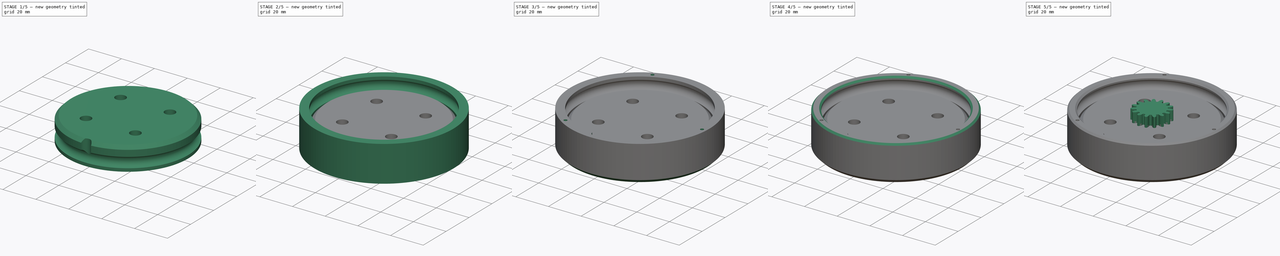
[diagram: build sequence overview — one tinted view per stage of 5, left to right]
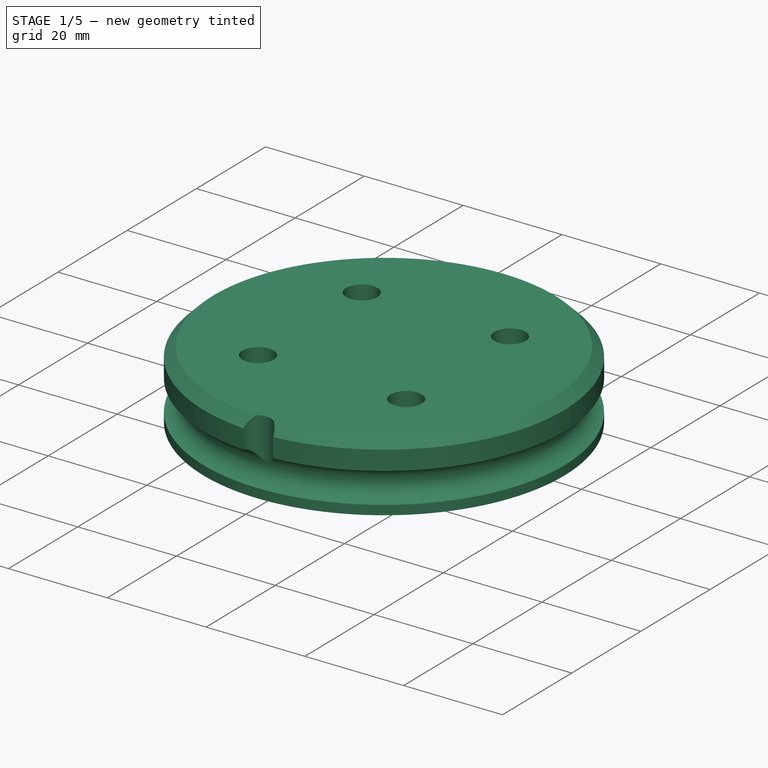
[diagram: stage 1 of 5 — iso view after this stage's code; geometry added in this stage tinted green]
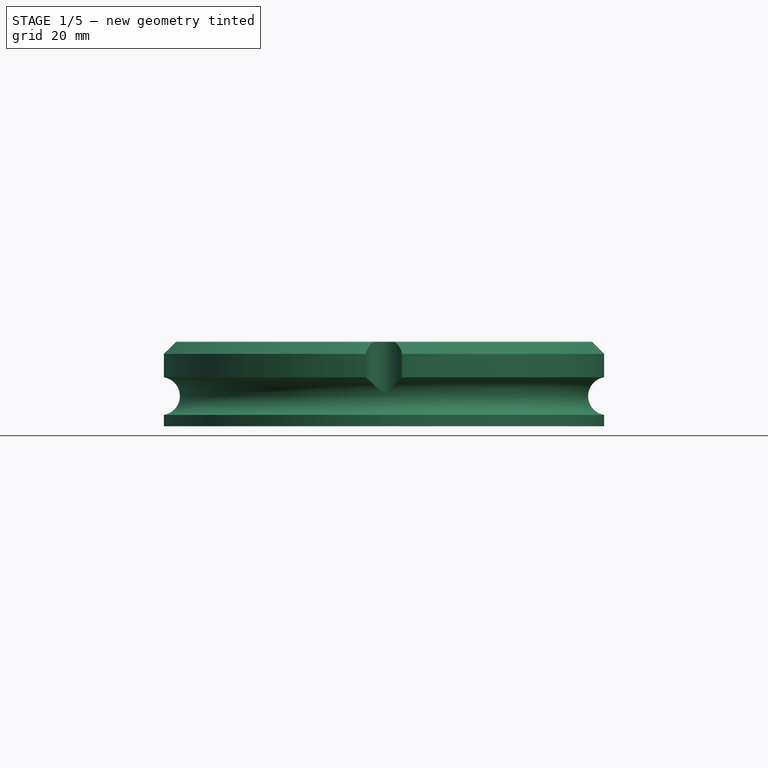
[diagram: stage 1 of 5 — front view after this stage's code; geometry added in this stage tinted green]
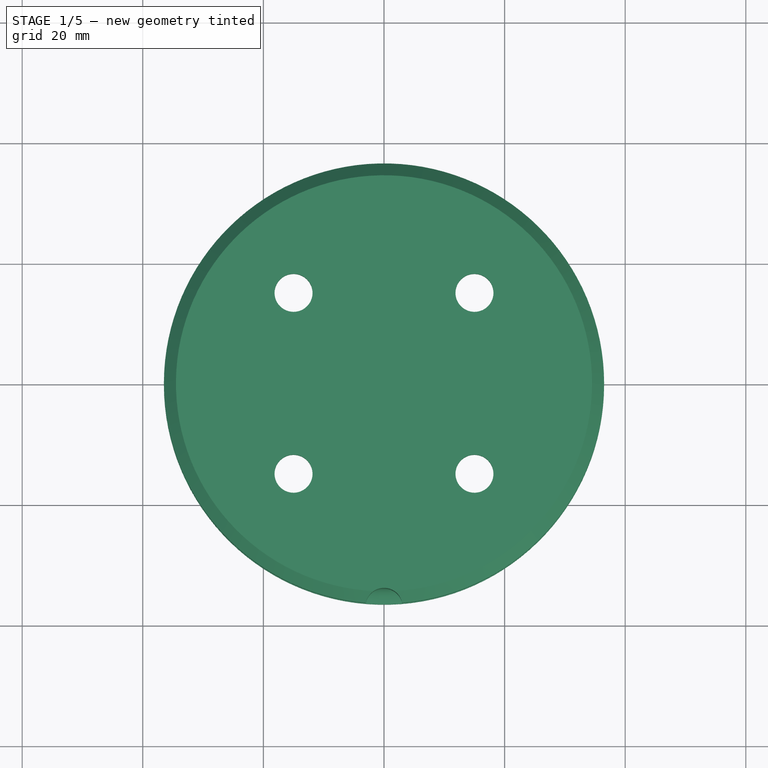
[diagram: stage 1 of 5 — top view after this stage's code; geometry added in this stage tinted green]
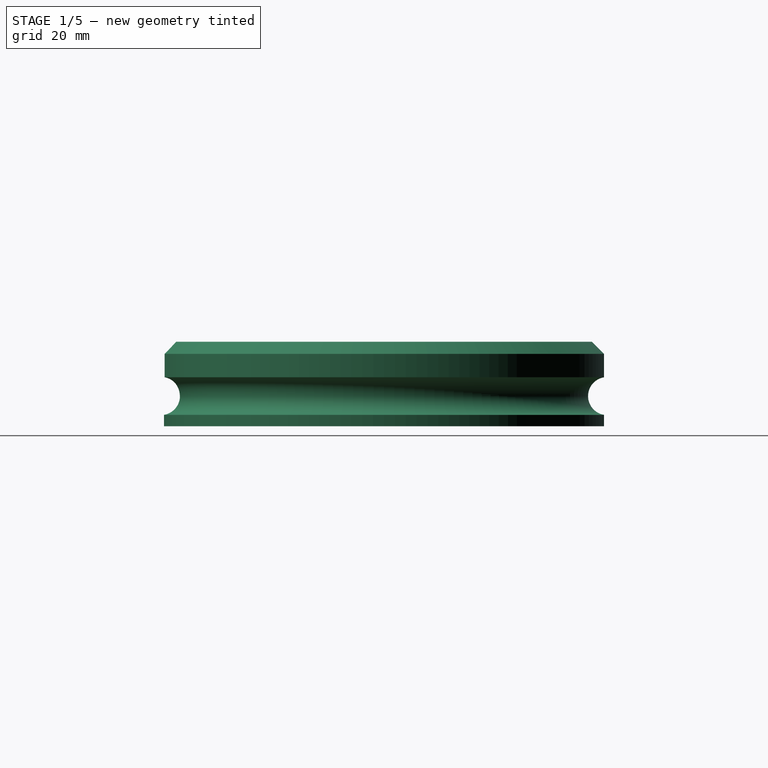
[diagram: stage 1 of 5 — right view after this stage's code; geometry added in this stage tinted green]
FCSTD DOCUMENT  (FreeCAD 2022.430R26244 +4758 (Git))
Label: gearbox-2
License: All rights reserved
LicenseURL: http://en.wikipedia.org/wiki/All_rights_reserved
objects: Sketcher::SketchObject×15, PartDesign::Pocket×9, PartDesign::Pad×8, Part::Part2DObjectPython×6, PartDesign::Body×6, App::Link×4, PartDesign::Chamfer×4, PartDesign::Fillet×3, PartDesign::SubtractivePipe×2, PartDesign::Hole×2, Spreadsheet::Sheet×1
note: 111 computed .brp shape members not serialized (recipe doc carries the construction recipe); baked Part::Feature solids carry a one-line shape summary decoded from their .brp

FEATURE [Part::Part2DObjectPython] InvoluteGear002  label="s2-sun-sketch"  # Draft 2D object (typed FeaturePython)
  ExternalGear = true
  HighPrecision = false
  Modules = 1.27273
  NumberOfTeeth = 18
  PressureAngle = 20
  TreeRank = 42
  expr: Modules = <<sp>>.H9
  expr: NumberOfTeeth = <<sp>>.E9
FEATURE [Part::Part2DObjectPython] InvoluteGear003  label="s2-ring-sketch"  # Draft 2D object (typed FeaturePython)
  ExternalGear = false
  HighPrecision = false
  Modules = 1.27273
  NumberOfTeeth = 48
  Placement = pos=(0,0,11) rot=(0,0,1;0rad)
  PressureAngle = 20
  TreeRank = 58
  expr: Modules = <<sp>>.H9
  expr: NumberOfTeeth = <<sp>>.D9
FEATURE [Part::Part2DObjectPython] InvoluteGear004  label="s2-planet-sketch"  # Draft 2D object (typed FeaturePython)
  ExternalGear = true
  HighPrecision = false
  Modules = 1.27273
  NumberOfTeeth = 15
  Placement = pos=(0,0,10) rot=(0,0,1;0rad)
  PressureAngle = 20
  TreeRank = 121
  expr: Modules = <<sp>>.H9
  expr: NumberOfTeeth = <<sp>>.F9
FEATURE [Sketcher::SketchObject] Sketch001
  FullyConstrained = true
  MapMode = 5
  Support = -> [XY_Plane002]
  TreeRank = 87
  sketch-geometry (1):
    g0: Circle CenterX=0 CenterY=0 CenterZ=0 NormalX=0 NormalY=0 NormalZ=1 AngleXU=0 Radius=36.5
  constraints (2):
    c: Coincident(g0,g-1)
    c: Diameter(g0) = 73
FEATURE [PartDesign::Pad] Pad002
  AddSubType = 0
  AlongSketchNormal = false
  CheckUpToFaceLimits = true
  ClaimChildren = false
  Direction = (0,0,1)
  Fit = 0
  FitJoin = 0
  InnerFit = 0
  InnerFitJoin = 0
  InnerTaperAngle = 0
  InnerTaperAngleRev = 0
  Length = 14
  Length2 = 0
  Linearize = true
  NewSolid = false
  Profile = -> Sketch001
  Suppress = false
  TreeRank = 88
  Type = 0
  _ProfileBasedVersion = 1
FEATURE [PartDesign::Pocket] Pocket001
  AddSubType = 1
  BaseFeature = -> Pad002
  CheckUpToFaceLimits = true
  ClaimChildren = false
  Fit = 0
  FitJoin = 0
  InnerFit = 0
  InnerFitJoin = 0
  InnerTaperAngle = 0
  InnerTaperAngleRev = 0
  Length = 12
  Length2 = 100
  Linearize = true
  NewSolid = false
  Profile = -> InvoluteGear003
  Suppress = false
  TreeRank = 124
  Type = 0
  _ProfileBasedVersion = 1
  _Version = 1
FEATURE [Sketcher::SketchObject] Sketch003
  FullyConstrained = true
  MapMode = 5
  Placement = pos=(0,0,0) rot=(0.57735,0.57735,0.57735;2.0944rad)
  Support = -> [YZ_Plane001]
  TreeRank = 136
  sketch-geometry (1):
    g0: Circle CenterX=-37 CenterY=15 CenterZ=0 NormalX=0 NormalY=0 NormalZ=1 AngleXU=0 Radius=3.15
  constraints (3):
    c: Diameter(g0) = 6.3
    c: DistanceX(g0,g-1) = 37
    c: DistanceY(g-1,g0) = 15
FEATURE [Sketcher::SketchObject] Sketch004
  FullyConstrained = true
  MapMode = 5
  Placement = pos=(0,0,0) rot=(0.57735,0.57735,0.57735;2.0944rad)
  Support = -> [YZ_Plane002]
  TreeRank = 134
  sketch-geometry (1):
    g0: Circle CenterX=-37 CenterY=5 CenterZ=0 NormalX=0 NormalY=0 NormalZ=1 AngleXU=0 Radius=3.15
  constraints (3):
    c: Diameter(g0) = 6.3
    c: DistanceX(g0,g-1) = 37
    c: DistanceY(g-1,g0) = 5
FEATURE [PartDesign::SubtractivePipe] Pipe001
  AddSubType = 1
  AuxilleryCurvelinear = true
  AuxillerySpineTangent = false
  BaseFeature = -> Pocket001
  Binormal = (0,0,0)
  ClaimChildren = false
  Fit = 0
  FitJoin = 0
  InnerFit = 0
  InnerFitJoin = 0
  Linearize = true
  Mode = 0
  NewSolid = false
  Profile = -> Sketch004
  Spine = -> Pocket001 [Edge2]
  SpineTangent = false
  Suppress = false
  Transformation = 0
  Transition = 1
  TreeRank = 135
  _ProfileBasedVersion = 2
FEATURE [Sketcher::SketchObject] Sketch005
  FullyConstrained = true
  MapMode = 5
  Placement = pos=(0,0,14) rot=(0,0,1;0rad)
  Support = -> [Pipe001]
  TreeRank = 138
  sketch-geometry (1):
    g0: Circle CenterX=0 CenterY=-37 CenterZ=0 NormalX=0 NormalY=0 NormalZ=1 AngleXU=0 Radius=3.075
  constraints (3):
    c: PointOnObject(g0,g-2)
    c: Diameter(g0) = 6.15
    c: DistanceY(g0,g-1) = 37
FEATURE [PartDesign::Pocket] Pocket002
  AddSubType = 1
  BaseFeature = -> Pipe001
  CheckUpToFaceLimits = true
  ClaimChildren = false
  Fit = 0
  FitJoin = 0
  InnerFit = 0
  InnerFitJoin = 0
  InnerTaperAngle = 0
  InnerTaperAngleRev = 0
  Length = 9
  Length2 = 100
  Linearize = true
  NewSolid = false
  Profile = -> Sketch005
  Suppress = false
  TreeRank = 139
  Type = 0
  _ProfileBasedVersion = 1
  _Version = 1
FEATURE [PartDesign::Body] Body003  label="S2-Sun"
  AutoGroupSolids = false
  ClaimAllChildren = false
  ExportMode = 0
  Group = -> [InvoluteGear002,Pad005,Sketch010,Pocket006]
  Origin = -> Origin003
  Placement = pos=(0,0,10) rot=(0,0,1;0rad)
  Tip = -> Pocket006
  TreeRank = 104
  _ExportChildren = -> [Pad005,Pocket006]
  _GroupVersion = 1
FEATURE [Sketcher::SketchObject] Sketch011
  FullyConstrained = true
  MapMode = 5
  Placement = pos=(0,0,-2) rot=(1,0,0;3.14159rad)
  Support = -> [Pocket004]
  TreeRank = 166
  sketch-geometry (1):
    g0: Circle CenterX=0 CenterY=37.5 CenterZ=0 NormalX=0 NormalY=0 NormalZ=1 AngleXU=0 Radius=1
  constraints (3):
    c: PointOnObject(g0,g-2)
    c: Diameter(g0) = 2
    c: DistanceY(g-1,g0) = 37.5  'radius'
FEATURE [Sketcher::SketchObject] Sketch013
  FullyConstrained = true
  MapMode = 5
  Placement = pos=(0,0,14) rot=(0,0,1;0rad)
  Support = -> [Pocket002]
  TreeRank = 170
  sketch-geometry (9):
    g0: LineSegment [constr] StartX=-15 StartY=15 StartZ=0 EndX=-15 EndY=-15 EndZ=0
    g1: LineSegment [constr] StartX=-15 StartY=-15 StartZ=0 EndX=15 EndY=-15 EndZ=0
    g2: LineSegment [constr] StartX=15 StartY=-15 StartZ=0 EndX=15 EndY=15 EndZ=0
    g3: LineSegment [constr] StartX=15 StartY=15 StartZ=0 EndX=-15 EndY=15 EndZ=0
    g4: GeomPoint [constr] X=0 Y=-1e-16 Z=0
    g5: Circle CenterX=-15 CenterY=15 CenterZ=0 NormalX=0 NormalY=0 NormalZ=1 AngleXU=0 Radius=2
    g6: Circle CenterX=15 CenterY=15 CenterZ=0 NormalX=0 NormalY=0 NormalZ=1 AngleXU=0 Radius=2
    g7: Circle CenterX=15 CenterY=-15 CenterZ=0 NormalX=0 NormalY=0 NormalZ=1 AngleXU=0 Radius=2
    g8: Circle CenterX=-15 CenterY=-15 CenterZ=0 NormalX=0 NormalY=0 NormalZ=1 AngleXU=0 Radius=2
  constraints (20):
    c: Coincident(g0,g1)
    c: Coincident(g1,g2)
    c: Coincident(g2,g3)
    c: Coincident(g3,g0)
    c: Horizontal(g1)
    c: Horizontal(g3)
    c: Vertical(g0)
    c: Vertical(g2)
    c: Symmetric(g1,g0,g4)
    c: Coincident(g4,g-1)
    c: Equal(g3,g2)
    c: Distance(g3) = 30
    c: Coincident(g5,g0)
    c: Coincident(g6,g2)
    c: Coincident(g7,g1)
    c: Coincident(g8,g0)
    c: Equal(g5,g6)
    c: Equal(g6,g7)
    c: Equal(g7,g8)
    c: Diameter(g6) = 4
FEATURE [PartDesign::Hole] Hole001
  AddSubType = 1
  BaseFeature = -> Pocket002
  ClaimChildren = false
  CustomThreadClearance = 0
  Depth = 25
  DepthType = 0
  Diameter = 6.3
  DrillForDepth = false
  DrillPoint = 1
  DrillPointAngle = 118
  Fit = 0
  FitJoin = 0
  HoleCutCountersinkAngle = 90
  HoleCutCustomValues = false
  HoleCutDepth = 0
  HoleCutDiameter = 8.95
  HoleCutType = 0
  InnerFit = 0
  InnerFitJoin = 0
  Linearize = true
  ModelThread = false
  NewSolid = false
  Profile = -> Sketch013
  Suppress = false
  Tapered = false
  TaperedAngle = 90
  ThreadClass = 0
  ThreadDepth = 25
  ThreadDepthType = 0
  ThreadDirection = 0
  ThreadFit = 2
  ThreadSize = 0
  ThreadType = 0
  Threaded = false
  TreeRank = 171
  UseCustomThreadClearance = false
  _ProfileBasedVersion = 1
FEATURE [PartDesign::Chamfer] Chamfer
  AddSubType = 0
  Angle = 45
  Base = -> Hole001 [Edge879,Edge883]
  BaseFeature = -> Hole001
  ChamferType = 0
  FlipDirection = false
  NewSolid = false
  Size = 2
  Size2 = 1
  SupportTransform = false
  Suppress = false
  TreeRank = 174
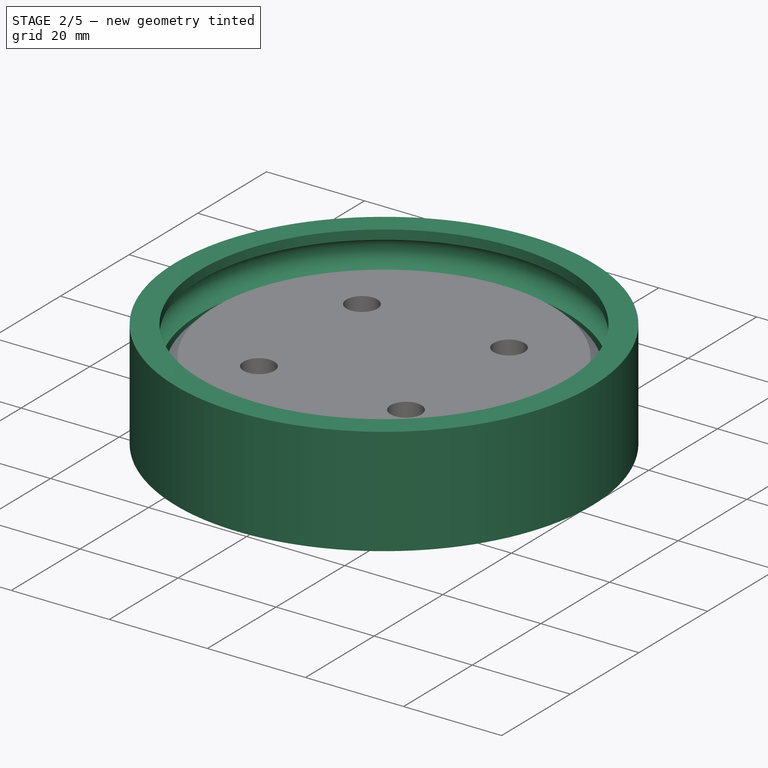
[diagram: stage 2 of 5 — iso view after this stage's code; geometry added in this stage tinted green]
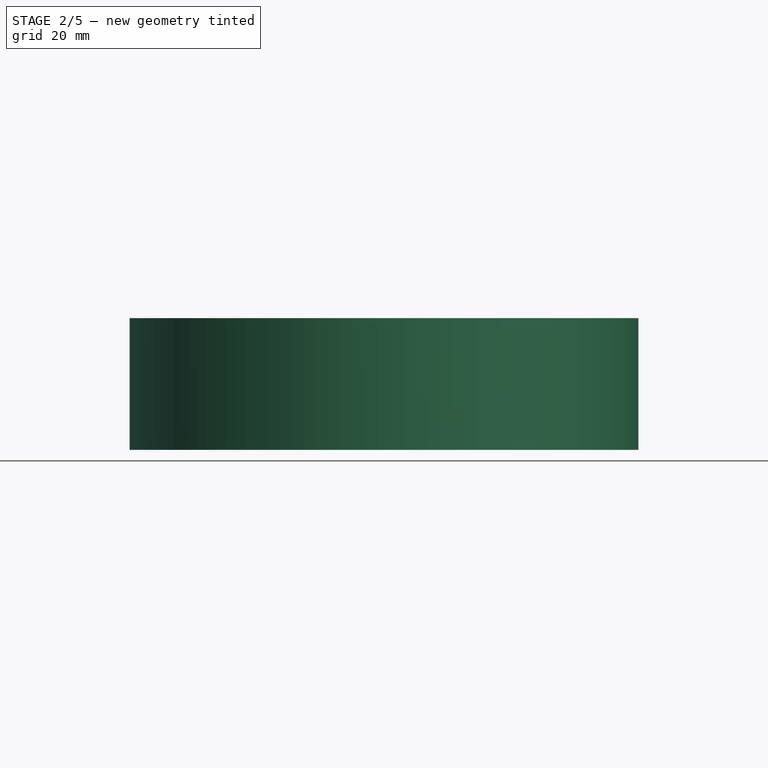
[diagram: stage 2 of 5 — front view after this stage's code; geometry added in this stage tinted green]
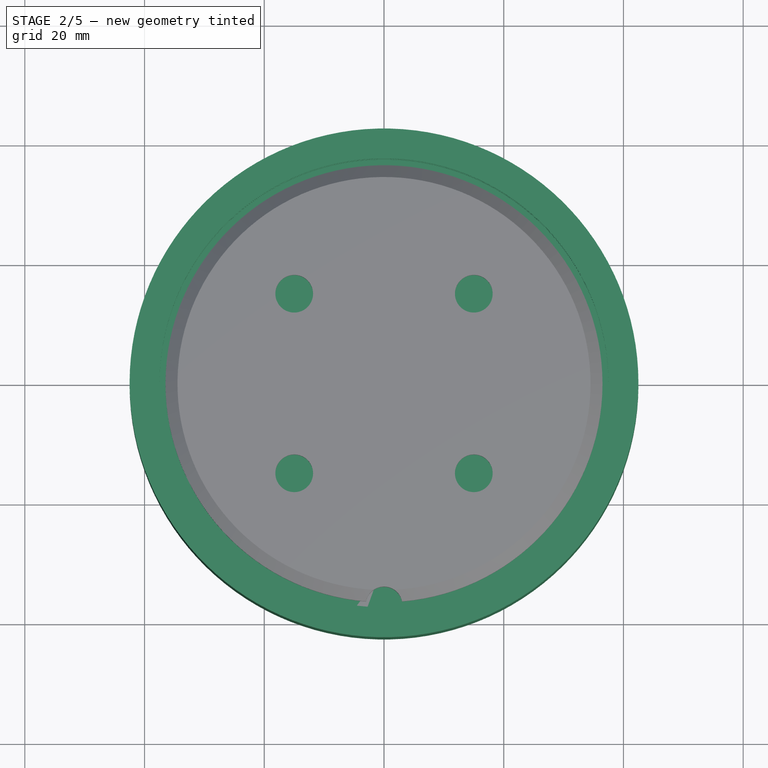
[diagram: stage 2 of 5 — top view after this stage's code; geometry added in this stage tinted green]
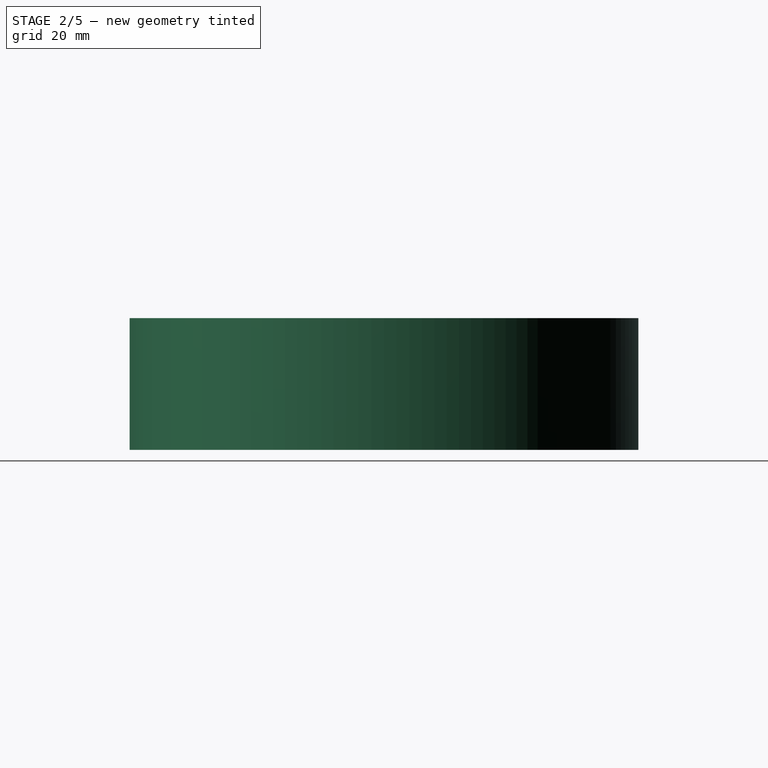
[diagram: stage 2 of 5 — right view after this stage's code; geometry added in this stage tinted green]
FEATURE [Spreadsheet::Sheet] Spreadsheet  label="sp"
  PythonMode = false
  ShowCells = 0
  TreeRank = 0
  cells = D6=Teeth; I6=Gear diameter; B7=Ratio; D7=Ring; E7=Sun; F7=Planet; H7=Module; I7=Ring; J7=Sun; K7=Planet; M7=Dist to planet; B8==1 / ((D9 - D8 / F8 * F9) / D9 * E8 / (D8 + E8)); D8==E8 + F8 * 2; E8=15; F8=15; H8=1.4; I8==D8 * H8; J8==E8 * H8; K8==F8 * H8; M8==(J8 + K8) / 2; D9==E9 + F9 * 2; E9=18; F9=15; H9==(E8 + F8) / (E9 + F9) * H8; I9==D9 * H9; J9==E9 * H9; K9==F9 * H9; M9==(J9 + K9) / 2; A11=These must be 0; B11==(D8 + D9) % 3; B12==(D9 + E9) % 3; E13=P1; F13=P2; G13=P3; D14=x; E14==M8 * cos(0); F14==M8 * cos(120); G14==M8 * cos(240); D15=y; E15==M8 * sin(0); F15==M8 * sin(120); G15==M8 * sin(240)
FEATURE [Part::Part2DObjectPython] InvoluteGear  label="s1-sun-sketch"  # Draft 2D object (typed FeaturePython)
  ExternalGear = true
  HighPrecision = false
  Modules = 1.4
  NumberOfTeeth = 15
  PressureAngle = 20
  TreeRank = 126
  expr: Modules = <<sp>>.H8
  expr: NumberOfTeeth = <<sp>>.E8
FEATURE [Part::Part2DObjectPython] InvoluteGear001  label="s1-ring-sketch"  # Draft 2D object (typed FeaturePython)
  ExternalGear = false
  HighPrecision = false
  Modules = 1.4
  NumberOfTeeth = 45
  PressureAngle = 20
  TreeRank = 2
  expr: Modules = <<sp>>.H8
  expr: NumberOfTeeth = <<sp>>.D8
FEATURE [Sketcher::SketchObject] Sketch
  FullyConstrained = true
  MapMode = 5
  Support = -> [XY_Plane001]
  TreeRank = 33
  sketch-geometry (1):
    g0: Circle CenterX=0 CenterY=0 CenterZ=0 NormalX=0 NormalY=0 NormalZ=1 AngleXU=0 Radius=42.5
  constraints (2):
    c: Coincident(g0,g-1)
    c: Diameter(g0) = 85
FEATURE [PartDesign::Pad] Pad001
  AddSubType = 0
  AlongSketchNormal = false
  CheckUpToFaceLimits = true
  ClaimChildren = false
  Direction = (0,0,1)
  Fit = 0
  FitJoin = 0
  InnerFit = 0
  InnerFitJoin = 0
  InnerTaperAngle = 0
  InnerTaperAngleRev = 0
  Length = 10
  Length2 = 2
  Linearize = true
  NewSolid = false
  Profile = -> Sketch
  Suppress = false
  TreeRank = 34
  Type = 4
  _ProfileBasedVersion = 1
FEATURE [PartDesign::Pocket] Pocket
  AddSubType = 1
  BaseFeature = -> Pad001
  CheckUpToFaceLimits = true
  ClaimChildren = false
  Fit = 0
  FitJoin = 0
  InnerFit = 0
  InnerFitJoin = 0
  InnerTaperAngle = 0
  InnerTaperAngleRev = 0
  Length = 10
  Length2 = 100
  Linearize = true
  NewSolid = false
  Profile = -> InvoluteGear001
  Reversed = true
  Suppress = false
  TreeRank = 125
  Type = 0
  _ProfileBasedVersion = 1
  _Version = 1
FEATURE [App::Link] Link003  label="Link003(S2-Planet)"
  AutoLinkLabel = true
  AutoPlacement = true
  LinkPlacement = pos=(-10.5,18.1865,0) rot=(0,0,1;0rad)
  LinkedObject = -> Body004
  Placement = pos=(-10.5,18.1865,0) rot=(0,0,1;0rad)
  SyncGroupVisibility = false
  TreeRank = 128
  _LinkVersion = 1
  expr: Placement.Base.x = <<sp>>.F14
  expr: Placement.Base.y = <<sp>>.F15
FEATURE [App::Link] Link004  label="Link004(S2-Planet)"
  AutoLinkLabel = true
  AutoPlacement = true
  LinkPlacement = pos=(-10.5,-18.1865,0) rot=(0,0,1;0rad)
  LinkedObject = -> Body004
  Placement = pos=(-10.5,-18.1865,0) rot=(0,0,1;0rad)
  SyncGroupVisibility = false
  TreeRank = 129
  _LinkVersion = 1
  expr: Placement.Base.x = <<sp>>.G14
  expr: Placement.Base.y = <<sp>>.G15
FEATURE [Sketcher::SketchObject] Sketch002
  FullyConstrained = true
  MapMode = 5
  Placement = pos=(0,0,10) rot=(0,0,1;0rad)
  Support = -> [Pocket]
  TreeRank = 130
  sketch-geometry (2):
    g0: Circle CenterX=0 CenterY=0 CenterZ=0 NormalX=0 NormalY=0 NormalZ=1 AngleXU=0 Radius=37.5
    g1: Circle CenterX=0 CenterY=0 CenterZ=0 NormalX=0 NormalY=0 NormalZ=1 AngleXU=0 Radius=42.5
  constraints (4):
    c: Coincident(g0,g-1)
    c: Diameter(g0) = 75
    c: Coincident(g1,g0)
    c: Diameter(g1) = 85
FEATURE [PartDesign::Pad] Pad006
  AddSubType = 0
  AlongSketchNormal = false
  BaseFeature = -> Pocket
  CheckUpToFaceLimits = true
  ClaimChildren = false
  Direction = (0,0,1)
  Fit = 0
  FitJoin = 0
  InnerFit = 0
  InnerFitJoin = 0
  InnerTaperAngle = 0
  InnerTaperAngleRev = 0
  Length = 10
  Length2 = 100
  Linearize = true
  NewSolid = false
  Profile = -> Sketch002
  Suppress = false
  TreeRank = 131
  Type = 0
  _ProfileBasedVersion = 1
FEATURE [PartDesign::SubtractivePipe] Pipe
  AddSubType = 1
  AuxilleryCurvelinear = true
  AuxillerySpineTangent = false
  BaseFeature = -> Pad006
  Binormal = (0,0,0)
  ClaimChildren = false
  Fit = 0
  FitJoin = 0
  InnerFit = 0
  InnerFitJoin = 0
  Linearize = true
  Mode = 0
  NewSolid = false
  Profile = -> Sketch003
  Spine = -> Pad006 [Edge8]
  SpineTangent = false
  Suppress = false
  Transformation = 0
  Transition = 1
  TreeRank = 137
  _ProfileBasedVersion = 2
FEATURE [PartDesign::Body] Body001  label="S1-Ring"
  AutoGroupSolids = false
  ClaimAllChildren = false
  ExportMode = 0
  Group = -> [Sketch,Pad001,InvoluteGear001,Pocket,Sketch002,Pad006,Sketch003,Pipe,Sketch006,Pocket003,Sketch007,Pocket004,Sketch011,Pocket007,Sketch012,Hole,Sketch014,Pocket008,Chamfer001,Chamfer002,Chamfer003,Fillet,Fillet001]
  Origin = -> Origin001
  Placement = pos=(0,0,0) rot=(0,0,1;0.069813rad)
  Tip = -> Fillet001
  TreeRank = 60
  _ExportChildren = -> [Pad001,Pocket,Pad006,Pipe,Pocket003,Pocket004,Pocket007,Hole,Pocket008,Chamfer001,Chamfer002,Chamfer003,Fillet,Fillet001]
  _GroupVersion = 1
FEATURE [PartDesign::Fillet] Fillet002
  AddSubType = 0
  Base = -> Chamfer [Edge11]
  BaseFeature = -> Chamfer
  NewSolid = false
  Radius = 1
  SupportTransform = false
  Suppress = false
  TreeRank = 181
FEATURE [PartDesign::Body] Body002  label="S2-Ring"
  AutoGroupSolids = false
  ClaimAllChildren = false
  ExportMode = 0
  Group = -> [Sketch001,Pad002,InvoluteGear003,Pocket001,Sketch004,Pipe001,Sketch005,Pocket002,Sketch013,Hole001,Chamfer,Fillet002]
  Origin = -> Origin002
  Placement = pos=(0,0,10) rot=(0,0,1;0.069813rad)
  Tip = -> Fillet002
  TreeRank = 86
  _ExportChildren = -> [Pad002,Pocket001,Pipe001,Pocket002,Hole001,Chamfer,Fillet002]
  _GroupVersion = 1
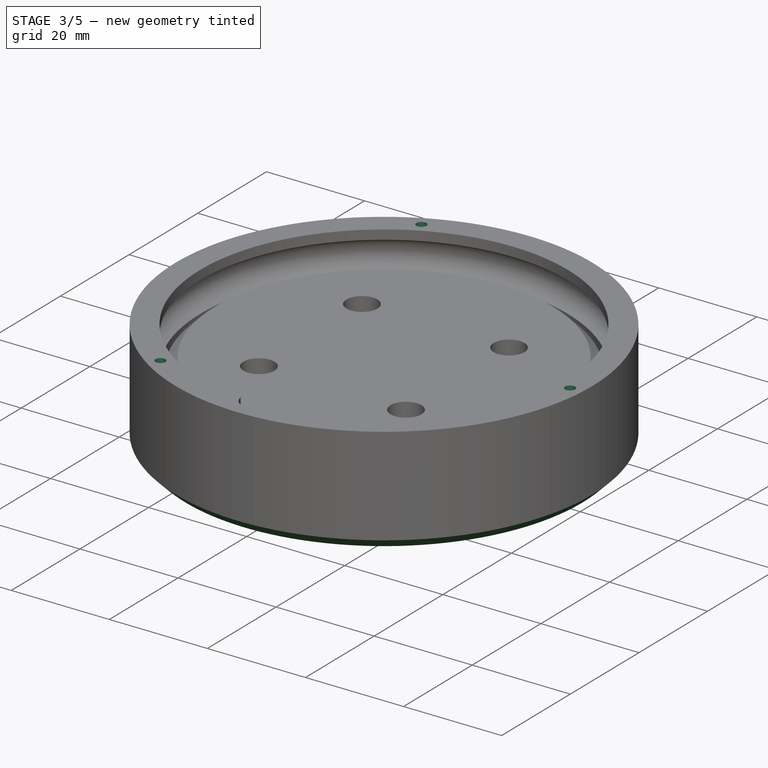
[diagram: stage 3 of 5 — iso view after this stage's code; geometry added in this stage tinted green]
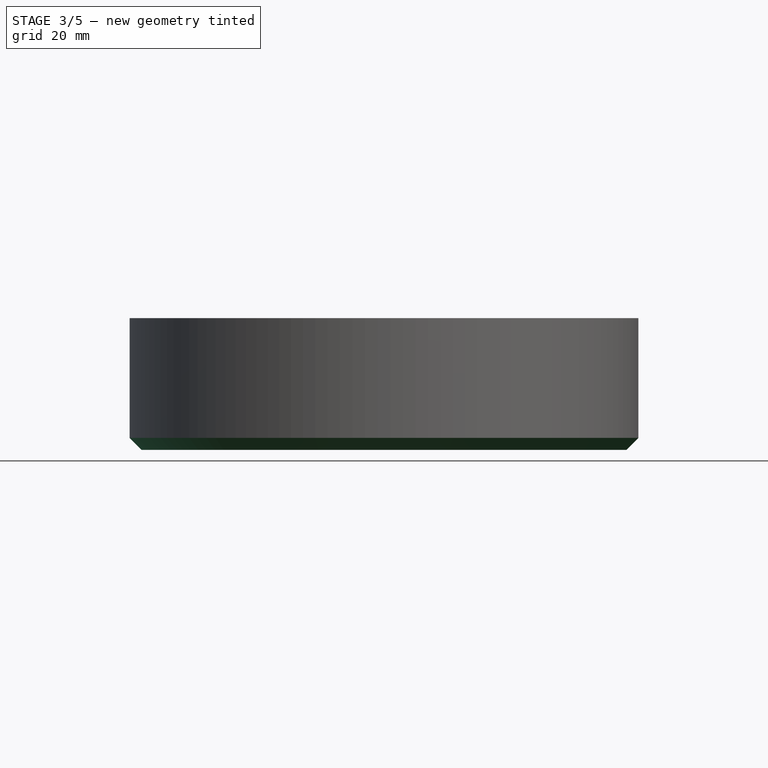
[diagram: stage 3 of 5 — front view after this stage's code; geometry added in this stage tinted green]
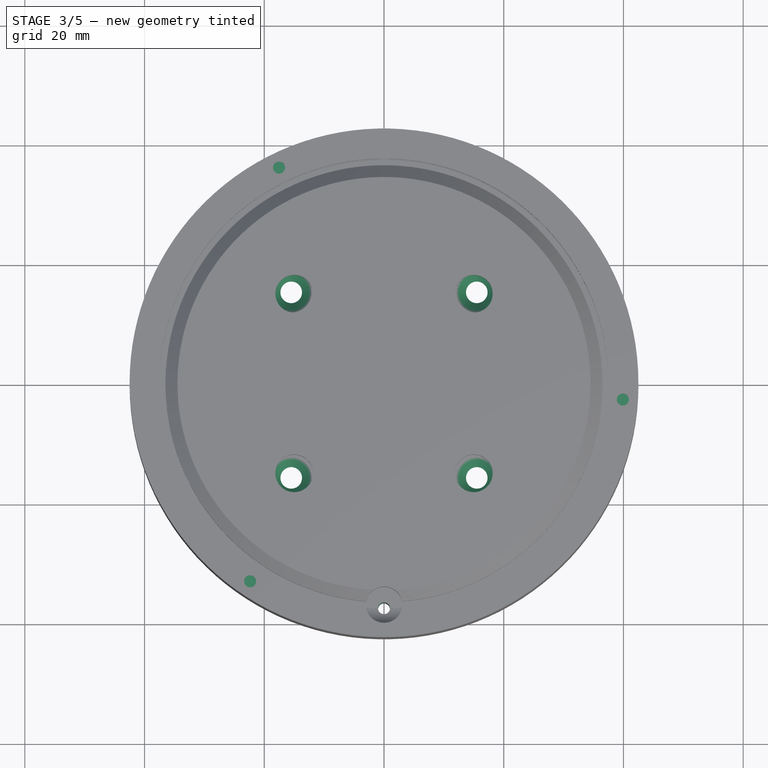
[diagram: stage 3 of 5 — top view after this stage's code; geometry added in this stage tinted green]
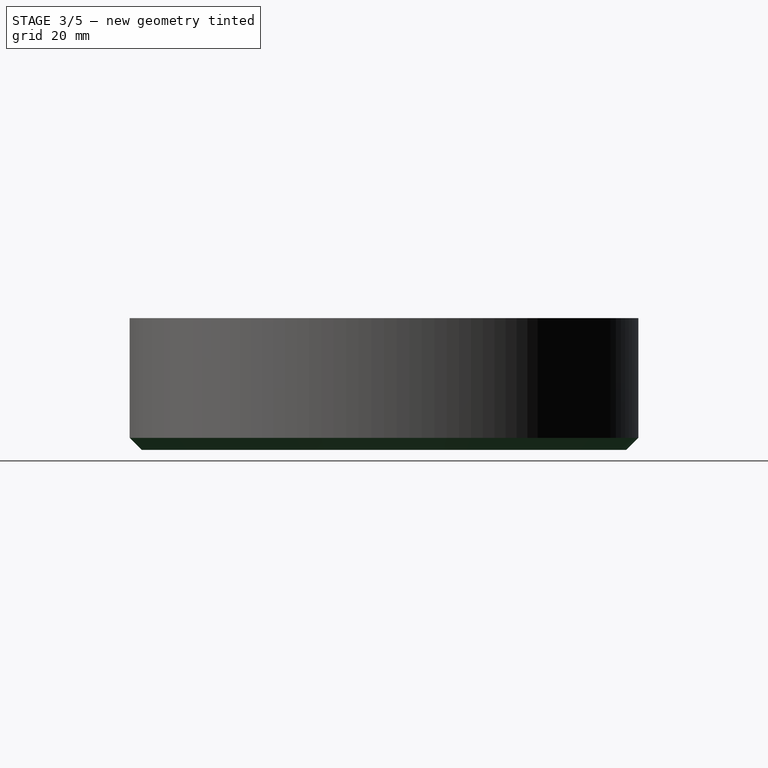
[diagram: stage 3 of 5 — right view after this stage's code; geometry added in this stage tinted green]
FEATURE [Sketcher::SketchObject] Sketch006
  FullyConstrained = true
  MapMode = 5
  Placement = pos=(0,0,20) rot=(0,0,1;0rad)
  Support = -> [Pipe]
  TreeRank = 140
  sketch-geometry (1):
    g0: Circle CenterX=0 CenterY=-37 CenterZ=0 NormalX=0 NormalY=0 NormalZ=1 AngleXU=0 Radius=3.075
  constraints (3):
    c: PointOnObject(g0,g-2)
    c: Diameter(g0) = 6.15
    c: DistanceY(g0,g-1) = 37
FEATURE [PartDesign::Pocket] Pocket003
  AddSubType = 1
  BaseFeature = -> Pipe
  CheckUpToFaceLimits = true
  ClaimChildren = false
  Fit = 0
  FitJoin = 0
  InnerFit = 0
  InnerFitJoin = 0
  InnerTaperAngle = 0
  InnerTaperAngleRev = 0
  Length = 5
  Length2 = 100
  Linearize = true
  NewSolid = false
  Profile = -> Sketch006
  Suppress = false
  TreeRank = 141
  Type = 0
  _ProfileBasedVersion = 1
  _Version = 1
FEATURE [Sketcher::SketchObject] Sketch007
  FullyConstrained = true
  MapMode = 5
  Support = -> [XY_Plane001]
  TreeRank = 142
  sketch-geometry (1):
    g0: Circle CenterX=0 CenterY=0 CenterZ=0 NormalX=0 NormalY=0 NormalZ=1 AngleXU=0 Radius=11
  constraints (2):
    c: Coincident(g0,g-1)
    c: Diameter(g0) = 22
FEATURE [PartDesign::Pocket] Pocket004
  AddSubType = 1
  BaseFeature = -> Pocket003
  CheckUpToFaceLimits = true
  ClaimChildren = false
  Fit = 0
  FitJoin = 0
  InnerFit = 0
  InnerFitJoin = 0
  InnerTaperAngle = 0
  InnerTaperAngleRev = 0
  Length = 10
  Length2 = 100
  Linearize = true
  NewSolid = false
  Profile = -> Sketch007
  Suppress = false
  TreeRank = 143
  Type = 0
  _ProfileBasedVersion = 1
  _Version = 1
FEATURE [PartDesign::Pocket] Pocket007
  AddSubType = 1
  BaseFeature = -> Pocket004
  CheckUpToFaceLimits = true
  ClaimChildren = false
  Fit = 0
  FitJoin = 0
  InnerFit = 0
  InnerFitJoin = 0
  InnerTaperAngle = 0
  InnerTaperAngleRev = 0
  Length = 20
  Length2 = 100
  Linearize = true
  NewSolid = false
  Profile = -> Sketch011
  Suppress = false
  TreeRank = 178
  Type = 0
  _ProfileBasedVersion = 1
  _Version = 1
FEATURE [Sketcher::SketchObject] Sketch012
  FullyConstrained = true
  MapMode = 5
  Support = -> [Pocket007]
  TreeRank = 168
  sketch-geometry (9):
    g0: LineSegment [constr] StartX=-15.5 StartY=15.5 StartZ=0 EndX=-15.5 EndY=-15.5 EndZ=0
    g1: LineSegment [constr] StartX=-15.5 StartY=-15.5 StartZ=0 EndX=15.5 EndY=-15.5 EndZ=0
    g2: LineSegment [constr] StartX=15.5 StartY=-15.5 StartZ=0 EndX=15.5 EndY=15.5 EndZ=0
    g3: LineSegment [constr] StartX=15.5 StartY=15.5 StartZ=0 EndX=-15.5 EndY=15.5 EndZ=0
    g4: GeomPoint [constr] X=0 Y=0 Z=0
    g5: Circle CenterX=15.5 CenterY=15.5 CenterZ=0 NormalX=0 NormalY=0 NormalZ=1 AngleXU=0 Radius=2
    g6: Circle CenterX=-15.5 CenterY=15.5 CenterZ=0 NormalX=0 NormalY=0 NormalZ=1 AngleXU=0 Radius=2
    g7: Circle CenterX=-15.5 CenterY=-15.5 CenterZ=0 NormalX=0 NormalY=0 NormalZ=1 AngleXU=0 Radius=2
    g8: Circle CenterX=15.5 CenterY=-15.5 CenterZ=0 NormalX=0 NormalY=0 NormalZ=1 AngleXU=0 Radius=2
  constraints (20):
    c: Coincident(g0,g1)
    c: Coincident(g1,g2)
    c: Coincident(g2,g3)
    c: Coincident(g3,g0)
    c: Horizontal(g1)
    c: Horizontal(g3)
    c: Vertical(g0)
    c: Vertical(g2)
    c: Symmetric(g1,g0,g4)
    c: Equal(g1,g2)
    c: Coincident(g4,g-1)
    c: Distance(g3) = 31
    c: Coincident(g5,g2)
    c: Coincident(g6,g0)
    c: Coincident(g7,g0)
    c: Coincident(g8,g1)
    c: Equal(g8,g7)
    c: Equal(g7,g6)
    c: Equal(g6,g5)
    c: Diameter(g5) = 4
FEATURE [PartDesign::Hole] Hole
  AddSubType = 1
  BaseFeature = -> Pocket007
  ClaimChildren = false
  CustomThreadClearance = 0
  Depth = 25
  DepthType = 0
  Diameter = 3.6
  DrillForDepth = false
  DrillPoint = 0
  DrillPointAngle = 112
  Fit = 0
  FitJoin = 0
  HoleCutCountersinkAngle = 85
  HoleCutCustomValues = false
  HoleCutDepth = 0
  HoleCutDiameter = 6.8
  HoleCutType = 2
  InnerFit = 0
  InnerFitJoin = 0
  Linearize = true
  ModelThread = false
  NewSolid = false
  Profile = -> Sketch012
  Suppress = false
  Tapered = true
  TaperedAngle = 90
  ThreadClass = 0
  ThreadDepth = 25
  ThreadDepthType = 0
  ThreadDirection = 0
  ThreadFit = 2
  ThreadSize = 9
  ThreadType = 1
  Threaded = false
  TreeRank = 169
  UseCustomThreadClearance = false
  _ProfileBasedVersion = 1
FEATURE [Sketcher::SketchObject] Sketch014
  FullyConstrained = true
  MapMode = 5
  Placement = pos=(0,0,20) rot=(0,0,1;0rad)
  Support = -> [Hole]
  TreeRank = 172
  sketch-geometry (10):
    g0: Circle [constr] CenterX=0 CenterY=0 CenterZ=0 NormalX=0 NormalY=0 NormalZ=1 AngleXU=0 Radius=40
    g1: LineSegment [constr] StartX=0 StartY=0 StartZ=0 EndX=25.9367 EndY=-1.81367 EndZ=0
    g2: LineSegment [constr] StartX=25.9367 StartY=-1.81367 StartZ=0 EndX=39.9026 EndY=-2.79026 EndZ=0
    g3: LineSegment [constr] StartX=0 StartY=0 StartZ=0 EndX=-14.539 EndY=-21.555 EndZ=0
    g4: LineSegment [constr] StartX=-14.539 StartY=-21.555 StartZ=0 EndX=-22.3677 EndY=-33.1615 EndZ=0
    g5: LineSegment [constr] StartX=0 StartY=0 StartZ=0 EndX=-11.3976 EndY=23.3686 EndZ=0
    g6: LineSegment [constr] StartX=-11.3976 StartY=23.3686 StartZ=0 EndX=-17.5348 EndY=35.9518 EndZ=0
    g7: Circle CenterX=39.9026 CenterY=-2.79026 CenterZ=0 NormalX=0 NormalY=0 NormalZ=1 AngleXU=0 Radius=1
    g8: Circle CenterX=-22.3677 CenterY=-33.1615 CenterZ=0 NormalX=0 NormalY=0 NormalZ=1 AngleXU=0 Radius=1
    g9: Circle CenterX=-17.5348 CenterY=35.9518 CenterZ=0 NormalX=0 NormalY=0 NormalZ=1 AngleXU=0 Radius=1
  constraints (26):
    c: Coincident(g0,g-1)
    c: Diameter(g0) = 80
    c: Coincident(g5,g0)
    c: PointOnObject(g6,g0)
    c: Coincident(g1,g0)
    c: PointOnObject(g2,g0)
    c: Coincident(g3,g0)
    c: PointOnObject(g4,g0)
    c: Coincident(g1,g2)
    c: Coincident(g3,g4)
    c: Coincident(g5,g6)
    c: Parallel(g1,g2)
    c: Parallel(g6,g5)
    c: Parallel(g3,g4)
    c: Angle(g1,g5) = 2.0944
    c: Angle(g5,g3) = 2.0944
    c: Angle(g1,g-1) = 0.0698132
    c: Equal(g1,g5)
    c: Equal(g5,g3)
    c: Distance(g1) = 26
    c: Equal(g9,g7)
    c: Equal(g7,g8)
    c: Diameter(g7) = 2
    c: Coincident(g9,g6)
    c: Coincident(g7,g2)
    c: Coincident(g8,g4)
FEATURE [PartDesign::Pocket] Pocket008
  AddSubType = 1
  BaseFeature = -> Hole
  CheckUpToFaceLimits = true
  ClaimChildren = false
  Fit = 0
  FitJoin = 0
  InnerFit = 0
  InnerFitJoin = 0
  InnerTaperAngle = 0
  InnerTaperAngleRev = 0
  Length = 1
  Length2 = 100
  Linearize = true
  NewSolid = false
  Profile = -> Sketch014
  Suppress = false
  TreeRank = 173
  Type = 0
  _ProfileBasedVersion = 1
  _Version = 1
FEATURE [PartDesign::Chamfer] Chamfer001
  AddSubType = 0
  Angle = 45
  Base = -> Pocket008 [Edge2]
  BaseFeature = -> Pocket008
  ChamferType = 0
  FlipDirection = false
  NewSolid = false
  Size = 2
  Size2 = 1
  SupportTransform = false
  Suppress = false
  TreeRank = 175
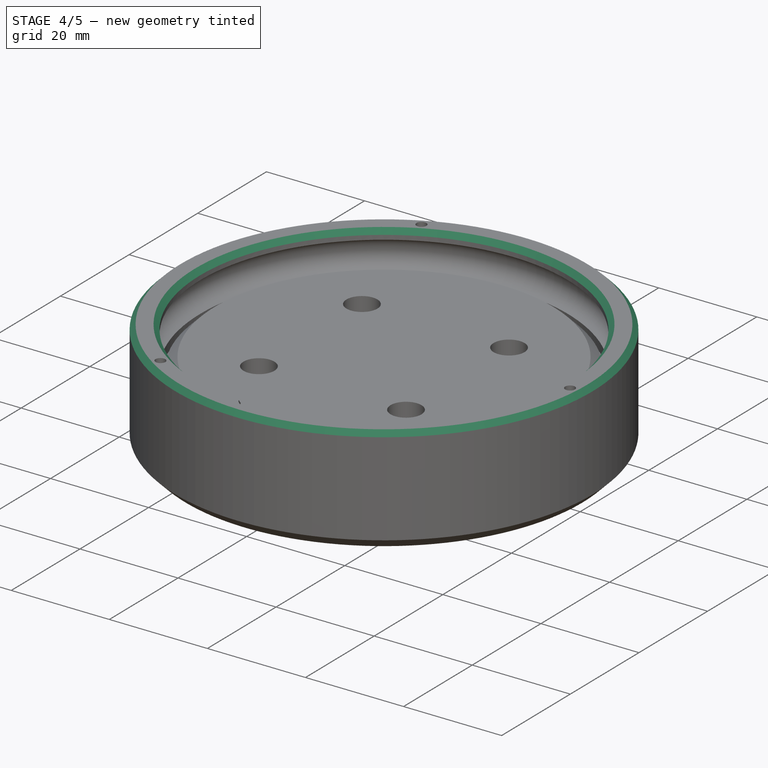
[diagram: stage 4 of 5 — iso view after this stage's code; geometry added in this stage tinted green]
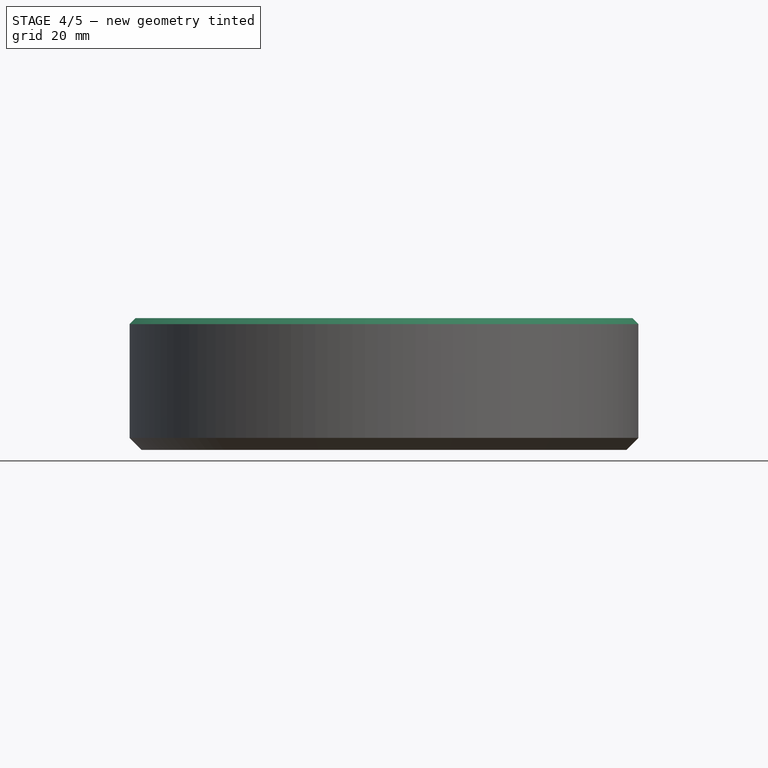
[diagram: stage 4 of 5 — front view after this stage's code; geometry added in this stage tinted green]
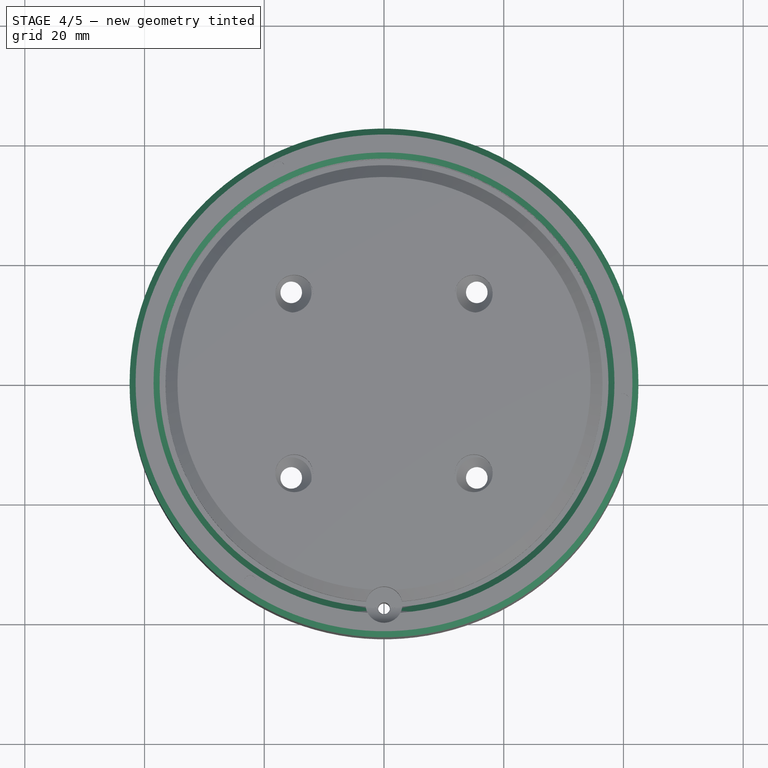
[diagram: stage 4 of 5 — top view after this stage's code; geometry added in this stage tinted green]
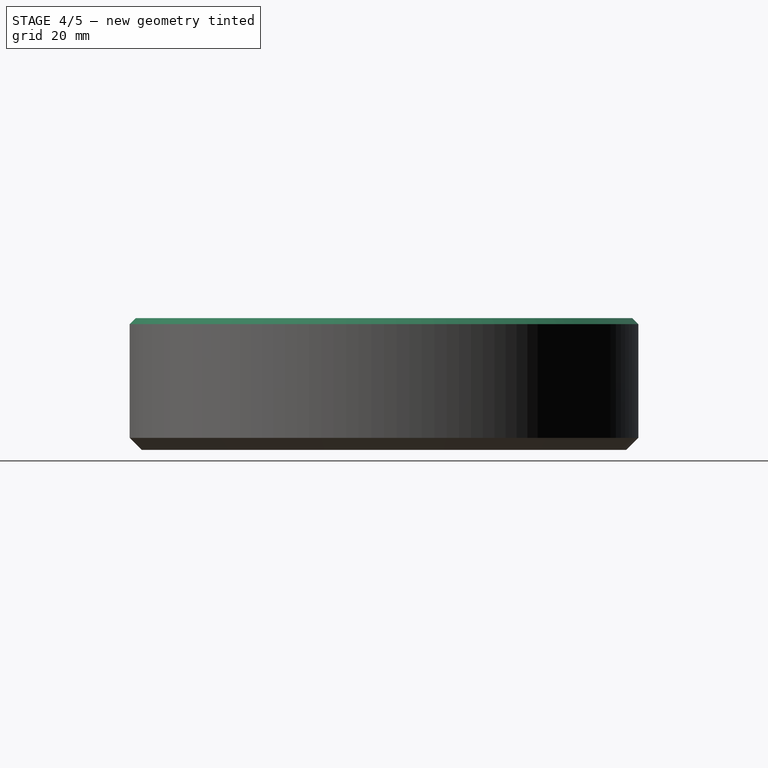
[diagram: stage 4 of 5 — right view after this stage's code; geometry added in this stage tinted green]
FEATURE [PartDesign::Body] Body004  label="S2-Planet"
  AutoGroupSolids = false
  ClaimAllChildren = false
  ExportMode = 0
  Group = -> [InvoluteGear004,Pad004]
  Origin = -> Origin004
  Placement = pos=(21,0,0) rot=(0,0,1;0rad)
  Tip = -> Pad004
  TreeRank = 120
  _ExportChildren = -> [Pad004]
  _GroupVersion = 1
  expr: Placement.Base.x = <<sp>>.E14
  expr: Placement.Base.y = <<sp>>.E15
FEATURE [PartDesign::Pad] Pad005
  AddSubType = 0
  AlongSketchNormal = false
  CheckUpToFaceLimits = true
  ClaimChildren = false
  Direction = (0,0,1)
  Fit = 0
  FitJoin = 0
  InnerFit = 0
  InnerFitJoin = 0
  InnerTaperAngle = 0
  InnerTaperAngleRev = 0
  Length = 10
  Length2 = 100
  Linearize = true
  NewSolid = false
  Profile = -> InvoluteGear002
  Suppress = false
  TreeRank = 123
  Type = 0
  _ProfileBasedVersion = 1
FEATURE [PartDesign::Chamfer] Chamfer002
  AddSubType = 0
  Angle = 45
  Base = -> Chamfer001 [Edge7]
  BaseFeature = -> Chamfer001
  ChamferType = 0
  FlipDirection = false
  NewSolid = false
  Size = 1
  Size2 = 1
  SupportTransform = false
  Suppress = false
  TreeRank = 176
FEATURE [PartDesign::Chamfer] Chamfer003
  AddSubType = 0
  Angle = 45
  Base = -> Chamfer002 [Edge10]
  BaseFeature = -> Chamfer002
  ChamferType = 0
  FlipDirection = false
  NewSolid = false
  Size = 1
  Size2 = 1
  SupportTransform = false
  Suppress = false
  TreeRank = 177
FEATURE [PartDesign::Fillet] Fillet
  AddSubType = 0
  Base = -> Chamfer003 [Edge12]
  BaseFeature = -> Chamfer003
  NewSolid = false
  Radius = 1
  SupportTransform = false
  Suppress = false
  TreeRank = 179
FEATURE [PartDesign::Fillet] Fillet001
  AddSubType = 0
  Base = -> Fillet [Edge24]
  BaseFeature = -> Fillet
  NewSolid = false
  Radius = 0.2
  SupportTransform = false
  Suppress = false
  TreeRank = 180
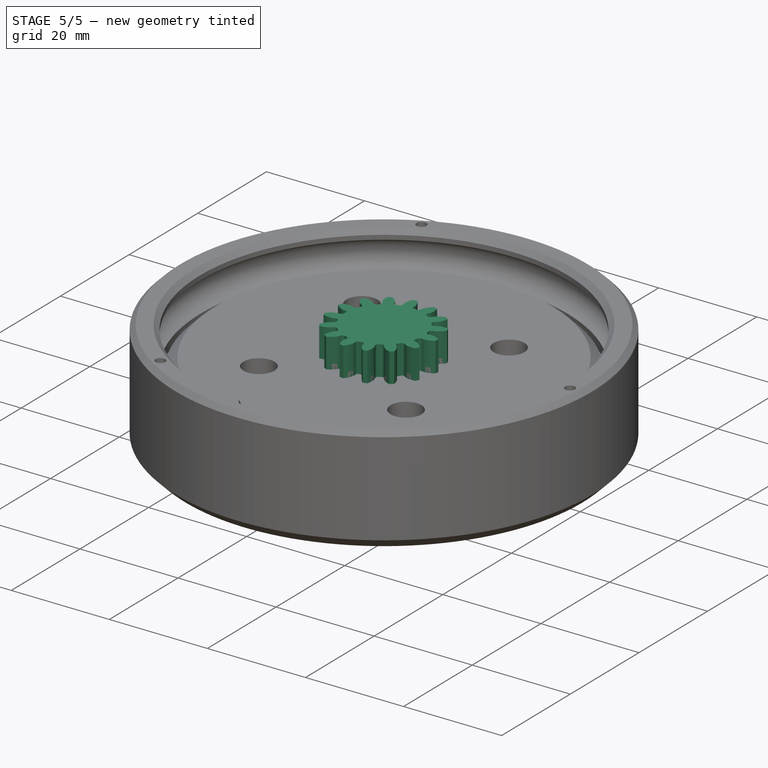
[diagram: stage 5 of 5 — iso view after this stage's code; geometry added in this stage tinted green]
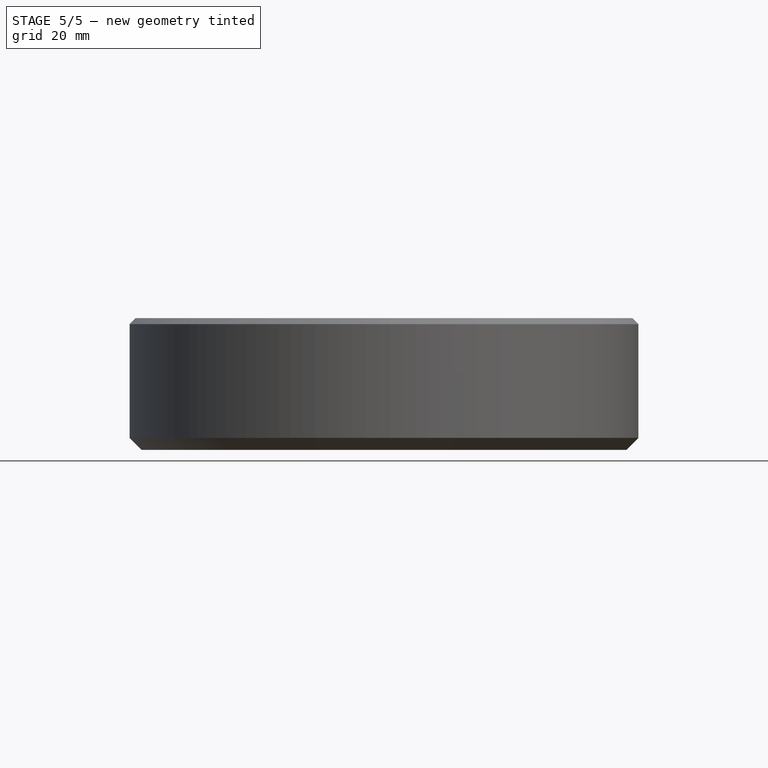
[diagram: stage 5 of 5 — front view after this stage's code; geometry added in this stage tinted green]
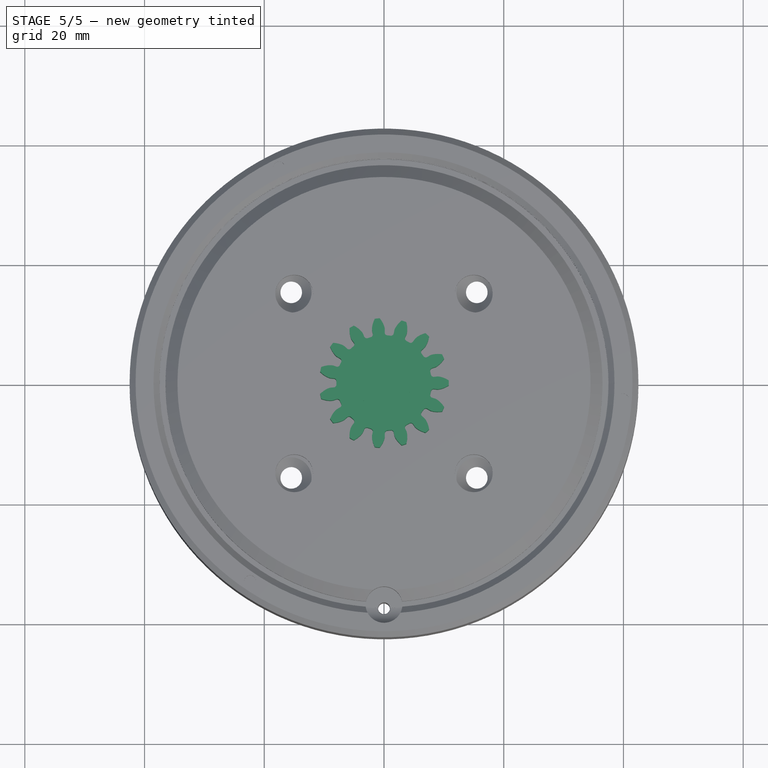
[diagram: stage 5 of 5 — top view after this stage's code; geometry added in this stage tinted green]
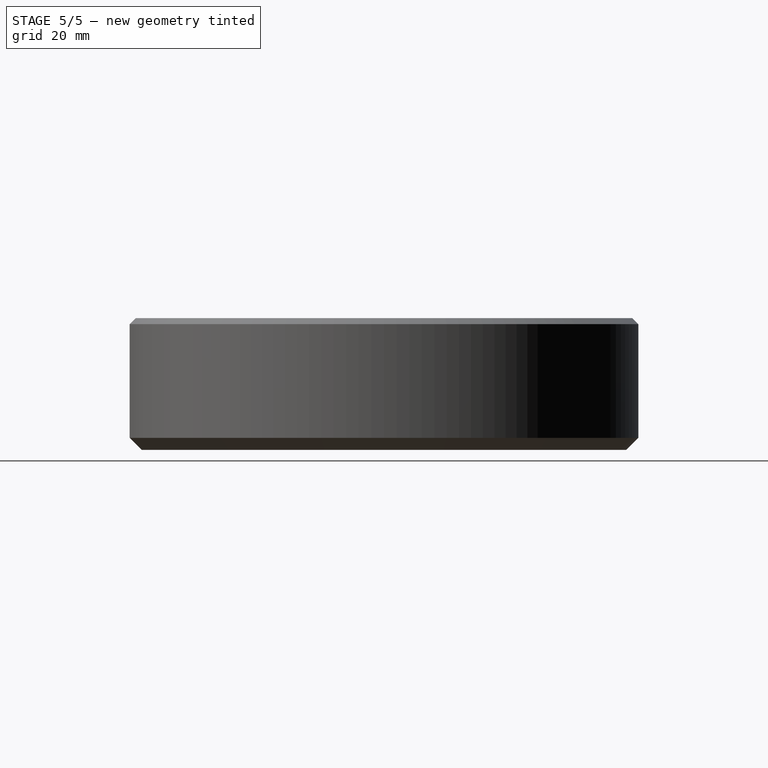
[diagram: stage 5 of 5 — right view after this stage's code; geometry added in this stage tinted green]
FEATURE [PartDesign::Pad] Pad004
  AddSubType = 0
  AlongSketchNormal = false
  CheckUpToFaceLimits = true
  ClaimChildren = false
  Direction = (0,0,1)
  Fit = 0
  FitJoin = 0
  InnerFit = 0
  InnerFitJoin = 0
  InnerTaperAngle = 0
  InnerTaperAngleRev = 0
  Length = 10
  Length2 = 100
  Linearize = true
  NewSolid = false
  Placement = pos=(0,0,10) rot=(0,0,1;0rad)
  Profile = -> InvoluteGear004
  Suppress = false
  TreeRank = 122
  Type = 0
  _ProfileBasedVersion = 1
FEATURE [PartDesign::Pad] Pad
  AddSubType = 0
  AlongSketchNormal = false
  CheckUpToFaceLimits = true
  ClaimChildren = false
  Direction = (0,0,1)
  Fit = 0
  FitJoin = 0
  InnerFit = 0
  InnerFitJoin = 0
  InnerTaperAngle = 0
  InnerTaperAngleRev = 0
  Length = 10
  Length2 = 100
  Linearize = true
  NewSolid = false
  Profile = -> InvoluteGear
  Suppress = false
  TreeRank = 127
  Type = 0
  _ProfileBasedVersion = 1
FEATURE [Sketcher::SketchObject] Sketch008
  FullyConstrained = true
  MapMode = 5
  Support = -> [XY_Plane]
  TreeRank = 144
  sketch-geometry (1):
    g0: Circle CenterX=0 CenterY=0 CenterZ=0 NormalX=0 NormalY=0 NormalZ=1 AngleXU=0 Radius=2.5
  constraints (2):
    c: Coincident(g0,g-1)
    c: Diameter(g0) = 5
FEATURE [PartDesign::Pocket] Pocket005
  AddSubType = 1
  BaseFeature = -> Pad
  CheckUpToFaceLimits = true
  ClaimChildren = false
  Fit = 0
  FitJoin = 0
  InnerFit = 0
  InnerFitJoin = 0
  InnerTaperAngle = 0
  InnerTaperAngleRev = 0
  Length = 10
  Length2 = 100
  Linearize = true
  NewSolid = false
  Profile = -> Sketch008
  Reversed = true
  Suppress = false
  TreeRank = 145
  Type = 0
  _ProfileBasedVersion = 1
  _Version = 1
FEATURE [Sketcher::SketchObject] Sketch009
  FullyConstrained = true
  MapMode = 5
  Placement = pos=(0,0,10) rot=(0,0,1;0rad)
  Support = -> [Pocket005]
  TreeRank = 146
  sketch-geometry (2):
    g0: Circle CenterX=0 CenterY=0 CenterZ=0 NormalX=0 NormalY=0 NormalZ=1 AngleXU=0 Radius=2.5
    g1: Circle CenterX=0 CenterY=0 CenterZ=0 NormalX=0 NormalY=0 NormalZ=1 AngleXU=0 Radius=4.5
  constraints (4):
    c: Coincident(g0,g-1)
    c: Coincident(g1,g0)
    c: Diameter(g0) = 5
    c: Diameter(g1) = 9
FEATURE [PartDesign::Pad] Pad007
  AddSubType = 0
  AlongSketchNormal = false
  BaseFeature = -> Pocket005
  CheckUpToFaceLimits = true
  ClaimChildren = false
  Direction = (0,0,1)
  Fit = 0
  FitJoin = 0
  InnerFit = 0
  InnerFitJoin = 0
  InnerTaperAngle = 0
  InnerTaperAngleRev = 0
  Length = 10
  Length2 = 100
  Linearize = true
  NewSolid = false
  Profile = -> Sketch009
  Suppress = false
  TreeRank = 147
  Type = 0
  _ProfileBasedVersion = 1
FEATURE [PartDesign::Body] Body  label="S1-Sun"
  AutoGroupSolids = false
  ClaimAllChildren = false
  ExportMode = 0
  Group = -> [InvoluteGear,Pad,Sketch008,Pocket005,Sketch009,Pad007]
  Origin = -> Origin
  Tip = -> Pad007
  TreeRank = 64
  _ExportChildren = -> [Pad,Pocket005,Pad007]
  _GroupVersion = 1
FEATURE [Part::Part2DObjectPython] InvoluteGear005  # Draft 2D object (typed FeaturePython)
  ExternalGear = true
  HighPrecision = false
  Modules = 1.4
  NumberOfTeeth = 15
  PressureAngle = 20
  TreeRank = 160
  expr: Modules = <<sp>>.H8
  expr: NumberOfTeeth = <<sp>>.F8
FEATURE [PartDesign::Pad] Pad008
  AddSubType = 0
  AlongSketchNormal = false
  CheckUpToFaceLimits = true
  ClaimChildren = false
  Direction = (0,0,1)
  Fit = 0
  FitJoin = 0
  InnerFit = 0
  InnerFitJoin = 0
  InnerTaperAngle = 0
  InnerTaperAngleRev = 0
  Length = 10
  Length2 = 100
  Linearize = true
  NewSolid = false
  Profile = -> InvoluteGear005
  Suppress = false
  TreeRank = 161
  Type = 0
  _ProfileBasedVersion = 1
FEATURE [PartDesign::Body] Body005  label="S1-Planet"
  AutoGroupSolids = false
  ClaimAllChildren = false
  ExportMode = 0
  Group = -> [InvoluteGear005,Pad008]
  Origin = -> Origin005
  Placement = pos=(21,0,0) rot=(0,0,1;0rad)
  Tip = -> Pad008
  TreeRank = 83
  _ExportChildren = -> [Pad008]
  _GroupVersion = 1
  expr: Placement.Base.x = <<sp>>.E14
  expr: Placement.Base.y = <<sp>>.E15
FEATURE [App::Link] Link  label="Link(S1-Planet)"
  AutoLinkLabel = true
  AutoPlacement = true
  LinkPlacement = pos=(-10.5,18.1865,0) rot=(0,0,1;0rad)
  LinkedObject = -> Body005
  Placement = pos=(-10.5,18.1865,0) rot=(0,0,1;0rad)
  SyncGroupVisibility = false
  TreeRank = 84
  _LinkVersion = 1
  expr: Placement.Base.x = <<sp>>.F14
  expr: Placement.Base.y = <<sp>>.F15
FEATURE [App::Link] Link005  label="Link005(S1-Planet)"
  AutoLinkLabel = true
  AutoPlacement = true
  LinkPlacement = pos=(-10.5,-18.1865,0) rot=(0,0,1;0rad)
  LinkedObject = -> Body005
  Placement = pos=(-10.5,-18.1865,0) rot=(0,0,1;0rad)
  SyncGroupVisibility = false
  TreeRank = 85
  _LinkVersion = 1
  expr: Placement.Base.x = <<sp>>.G14
  expr: Placement.Base.y = <<sp>>.G15
FEATURE [Sketcher::SketchObject] Sketch010
  FullyConstrained = true
  MapMode = 5
  Placement = pos=(0,0,10) rot=(0,0,1;0rad)
  Support = -> [Pad005]
  TreeRank = 164
  sketch-geometry (1):
    g0: Circle CenterX=0 CenterY=0 CenterZ=0 NormalX=0 NormalY=0 NormalZ=1 AngleXU=0 Radius=5
  constraints (2):
    c: Coincident(g0,g-1)
    c: Diameter(g0) = 10
FEATURE [PartDesign::Pocket] Pocket006
  AddSubType = 1
  BaseFeature = -> Pad005
  CheckUpToFaceLimits = true
  ClaimChildren = false
  Fit = 0
  FitJoin = 0
  InnerFit = 0
  InnerFitJoin = 0
  InnerTaperAngle = 0
  InnerTaperAngleRev = 0
  Length = 10
  Length2 = 100
  Linearize = true
  NewSolid = false
  Profile = -> Sketch010
  Suppress = false
  TreeRank = 165
  Type = 0
  _ProfileBasedVersion = 1
  _Version = 1
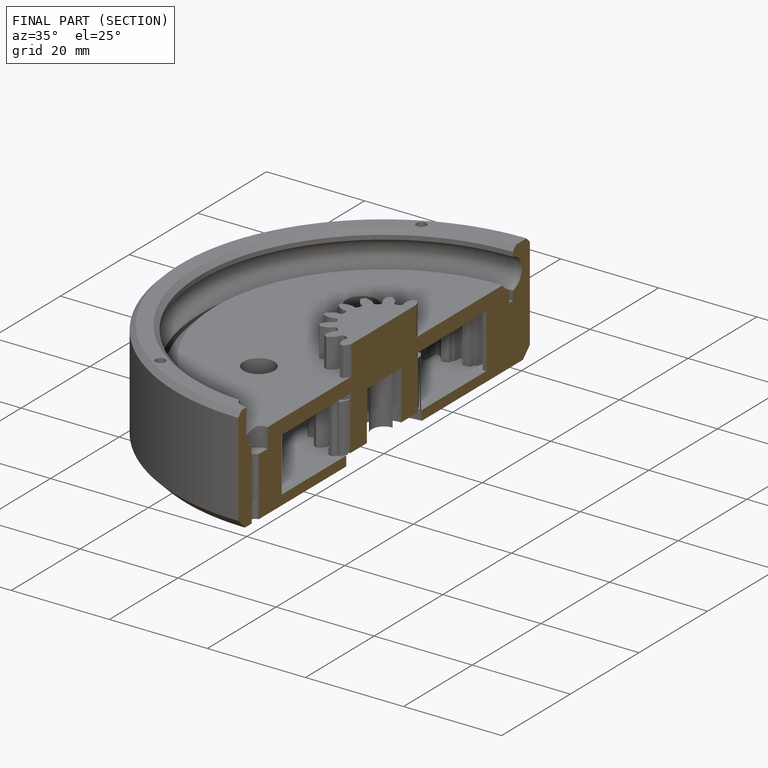
[diagram: finished part — half-section view (interior)]
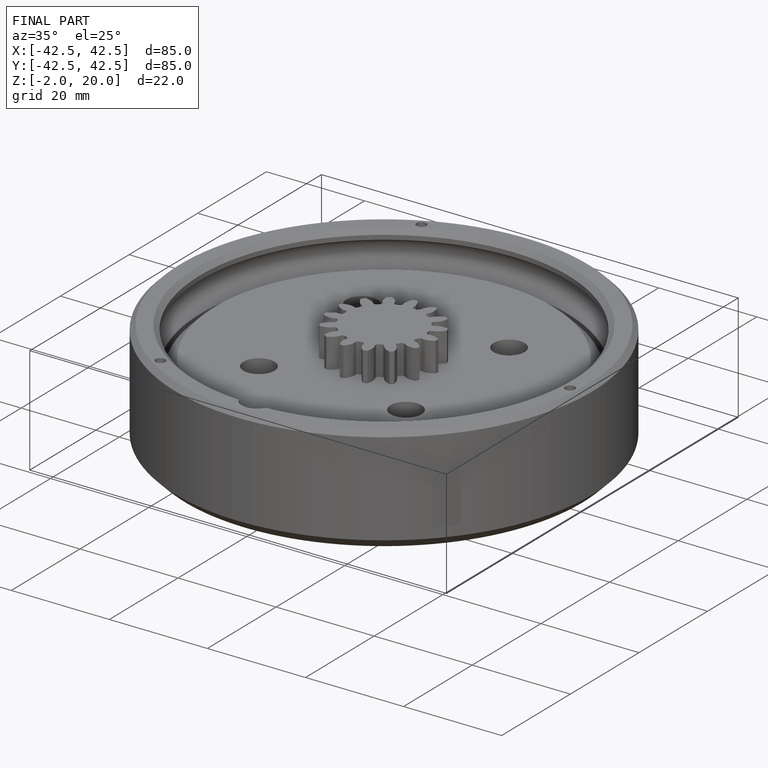
[diagram: finished part — iso view with bounding-box wireframe]
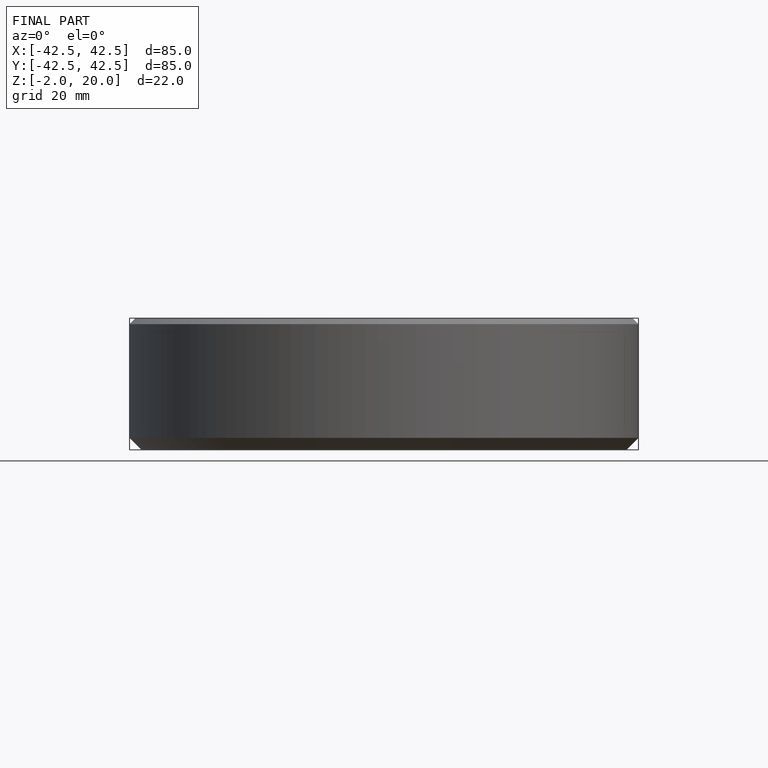
[diagram: finished part — front view with bounding-box wireframe]
